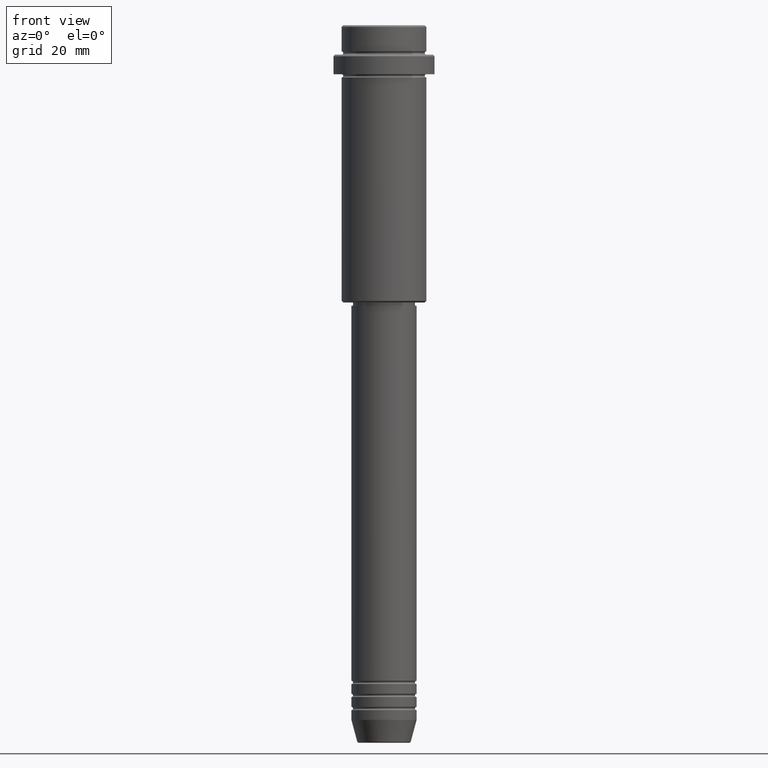
[diagram: clean part render]
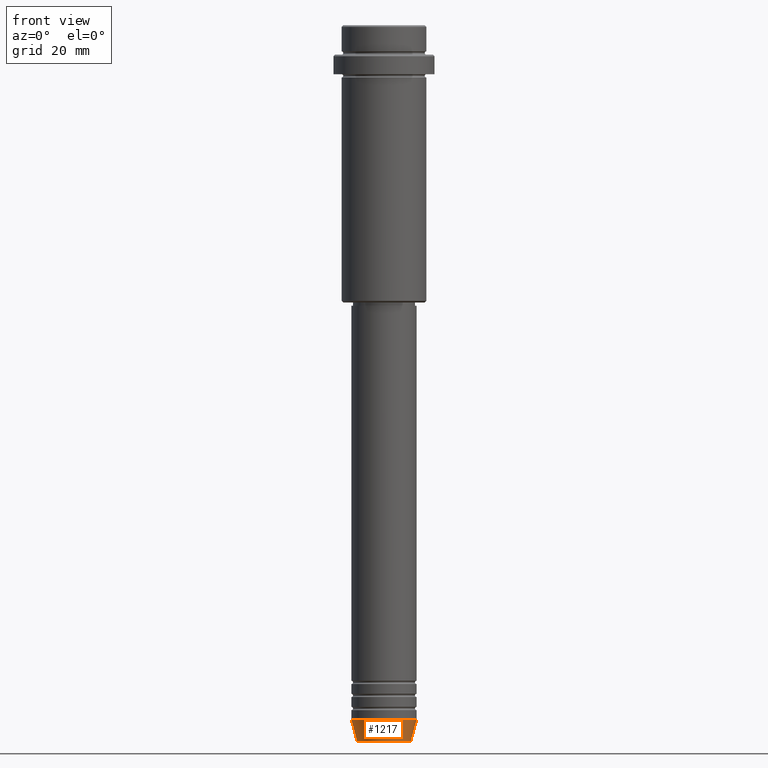
[diagram: same view with one face highlighted and labeled with its STEP entity id]
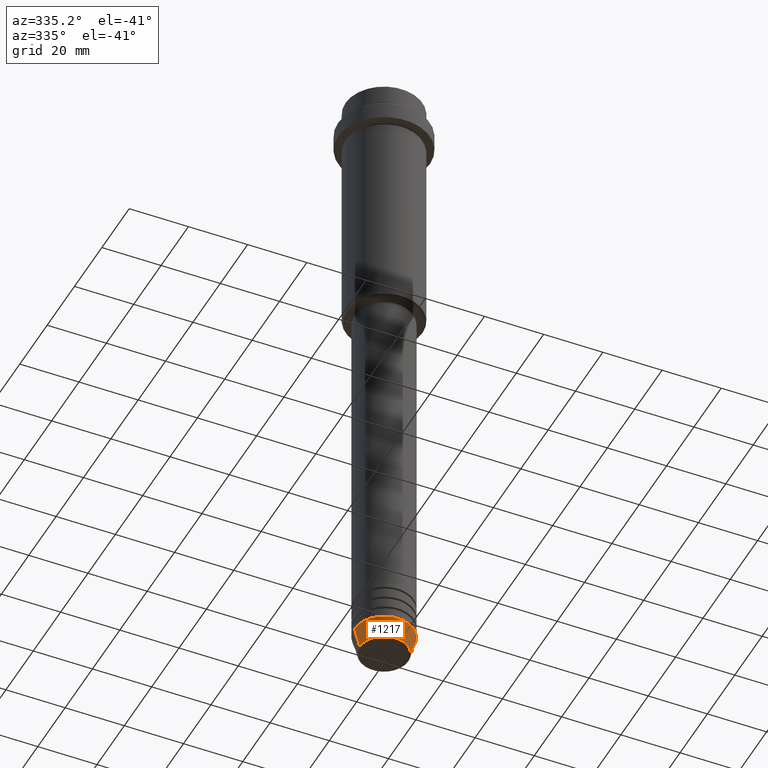
[diagram: same view with one face highlighted and labeled with its STEP entity id]
A machine part, front view. The second image highlights one B-rep face of the part: STEP entity #1217.
A second angle (auxiliary view) of the same face is appended — the face is thin or edge-on in the first view.
In plain terms, the highlighted conical surface has half-angle 15 deg.
Its self-contained STEP definition (entity closure, byte-faithful):
#18 = EDGE_CURVE ( 'NONE', #128, #1114, #851, .T. ) ;
#128 = VERTEX_POINT ( 'NONE', #676 ) ;
#149 = VERTEX_POINT ( 'NONE', #365 ) ;
#229 = AXIS2_PLACEMENT_3D ( 'NONE', #496, #405, #285 ) ;
#279 = EDGE_CURVE ( 'NONE', #1114, #149, #346, .T. ) ;
#285 = DIRECTION ( 'NONE',  ( 1.000000000000000000, 0.000000000000000000, 0.000000000000000000 ) ) ;
#303 = FACE_OUTER_BOUND ( 'NONE', #1112, .T. ) ;
#346 = CIRCLE ( 'NONE', #229, 10.00000000000000000 ) ;
#365 = CARTESIAN_POINT ( 'NONE',  ( 10.00000000000000000, 0.000000000000000000, -213.0000000000000284 ) ) ;
#402 = EDGE_CURVE ( 'NONE', #128, #1405, #1279, .T. ) ;
#405 = DIRECTION ( 'NONE',  ( -0.000000000000000000, -0.000000000000000000, 1.000000000000000000 ) ) ;
#422 = LINE ( 'NONE', #873, #1100 ) ;
#490 = DIRECTION ( 'NONE',  ( -0.000000000000000000, -0.000000000000000000, 1.000000000000000000 ) ) ;
#496 = CARTESIAN_POINT ( 'NONE',  ( 0.000000000000000000, 0.000000000000000000, -213.0000000000000284 ) ) ;
#518 = DIRECTION ( 'NONE',  ( 1.000000000000000000, 0.000000000000000000, 0.000000000000000000 ) ) ;
#662 = AXIS2_PLACEMENT_3D ( 'NONE', #1172, #825, #518 ) ;
#676 = CARTESIAN_POINT ( 'NONE',  ( -8.223655072137189492, 1.115877042642911856E-15, -219.6294095225512706 ) ) ;
#684 = CONICAL_SURFACE ( 'NONE', #662, 10.00000000000000000, 0.2617993877991502405 ) ;
#709 = ORIENTED_EDGE ( 'NONE', *, *, #279, .F. ) ;
#825 = DIRECTION ( 'NONE',  ( -0.000000000000000000, -0.000000000000000000, 1.000000000000000000 ) ) ;
#844 = DIRECTION ( 'NONE',  ( 1.000000000000000000, 0.000000000000000000, 0.000000000000000000 ) ) ;
#851 = LINE ( 'NONE', #872, #956 ) ;
#862 = AXIS2_PLACEMENT_3D ( 'NONE', #1023, #490, #844 ) ;
#872 = CARTESIAN_POINT ( 'NONE',  ( -10.00000000000000000, 1.224646799147353256E-15, -213.0000000000000284 ) ) ;
#873 = CARTESIAN_POINT ( 'NONE',  ( 10.00000000000000000, 0.000000000000000000, -213.0000000000000284 ) ) ;
#886 = DIRECTION ( 'NONE',  ( 0.2588190451025214611, 0.000000000000000000, 0.9659258262890679791 ) ) ;
#898 = CARTESIAN_POINT ( 'NONE',  ( 8.223655072137189492, 0.000000000000000000, -219.6294095225512706 ) ) ;
#956 = VECTOR ( 'NONE', #983, 1000.000000000000114 ) ;
#983 = DIRECTION ( 'NONE',  ( -0.2588190451025214611, 3.169619151431774186E-17, 0.9659258262890679791 ) ) ;
#993 = ORIENTED_EDGE ( 'NONE', *, *, #1378, .T. ) ;
#1023 = CARTESIAN_POINT ( 'NONE',  ( 0.000000000000000000, 0.000000000000000000, -219.6294095225512706 ) ) ;
#1100 = VECTOR ( 'NONE', #886, 1000.000000000000114 ) ;
#1112 = EDGE_LOOP ( 'NONE', ( #1277, #1363, #993, #709 ) ) ;
#1114 = VERTEX_POINT ( 'NONE', #1260 ) ;
#1172 = CARTESIAN_POINT ( 'NONE',  ( 0.000000000000000000, 0.000000000000000000, -213.0000000000000284 ) ) ;
#1217 = ADVANCED_FACE ( 'NONE', ( #303 ), #684, .T. ) ;
#1260 = CARTESIAN_POINT ( 'NONE',  ( -10.00000000000000000, 1.224646799147353256E-15, -213.0000000000000284 ) ) ;
#1277 = ORIENTED_EDGE ( 'NONE', *, *, #18, .F. ) ;
#1279 = CIRCLE ( 'NONE', #862, 8.223655072137189492 ) ;
#1363 = ORIENTED_EDGE ( 'NONE', *, *, #402, .T. ) ;
#1378 = EDGE_CURVE ( 'NONE', #1405, #149, #422, .T. ) ;
#1405 = VERTEX_POINT ( 'NONE', #898 ) ;